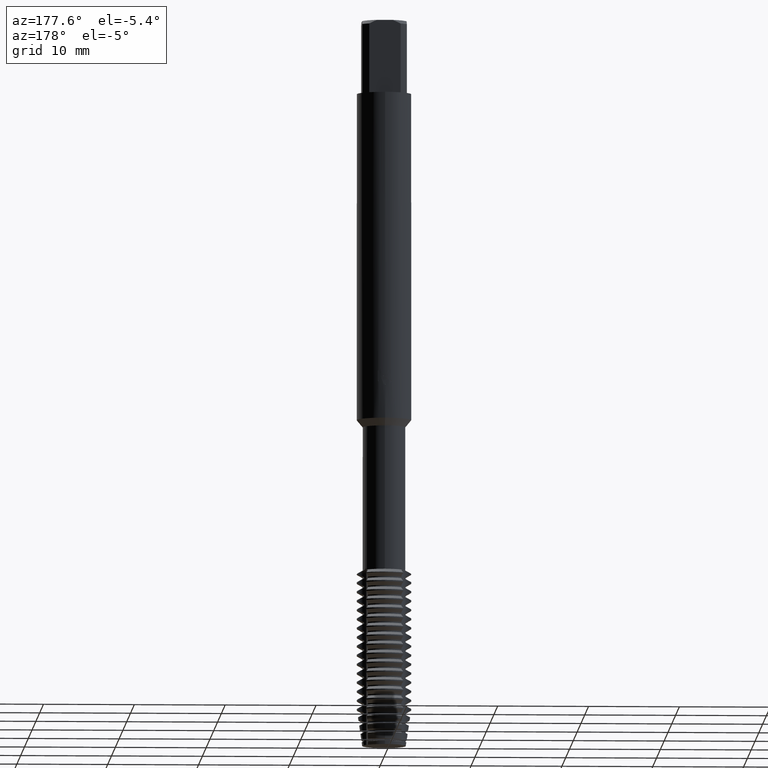
[diagram: clean part render]
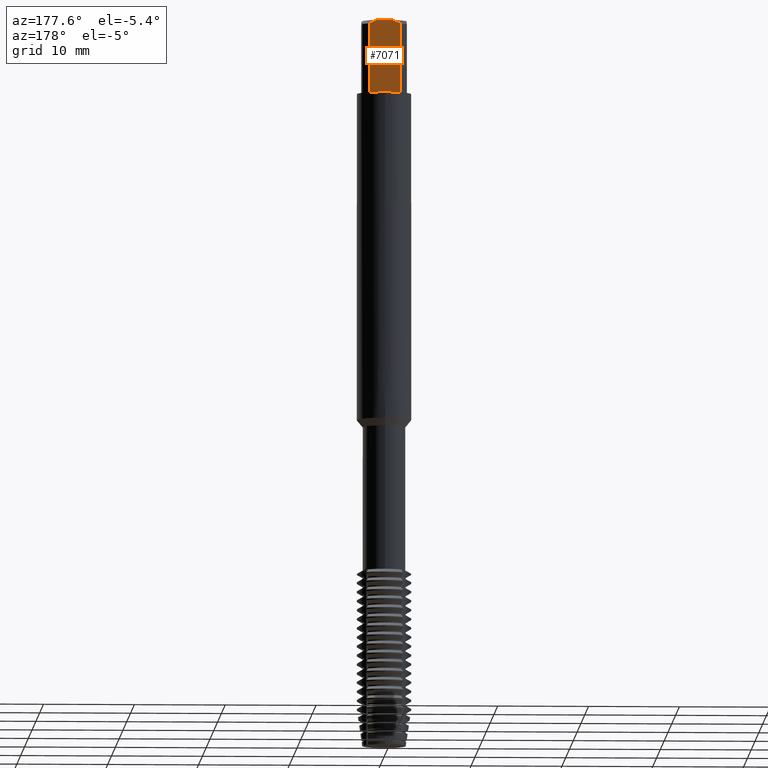
[diagram: same view with one face highlighted and labeled with its STEP entity id]
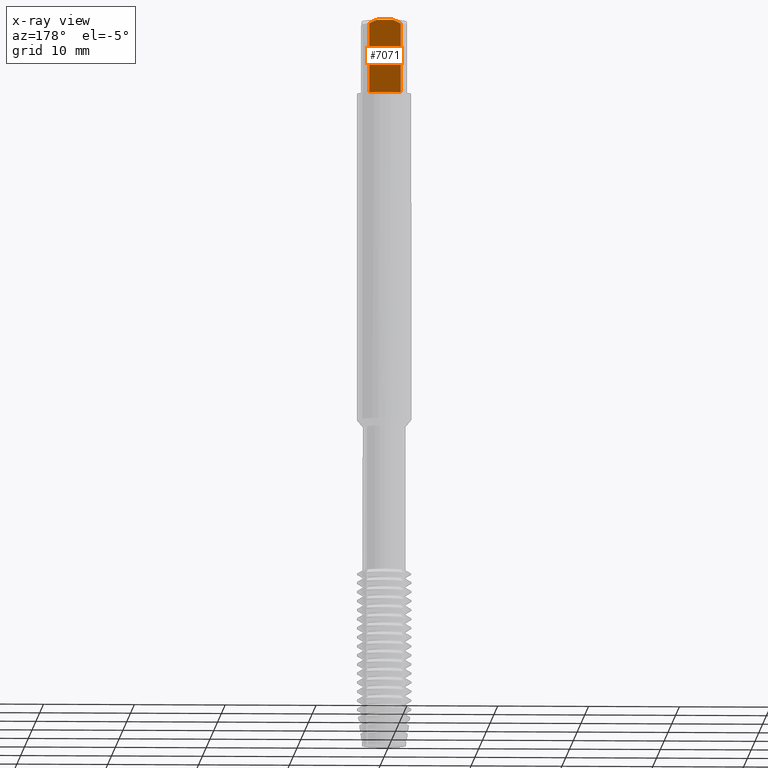
[diagram: x-ray of the same camera — body ghosted, the highlighted face saturated]
A machine part, auxiliary view. The second image highlights one B-rep face of the part: STEP entity #7071.
The next image is the same camera in x-ray: the body ghosted, the highlighted face saturated — about 0% of this face is hidden behind the body in this view.
In plain terms, the highlighted planar face has unit normal (0, 1, 0).
Its self-contained STEP definition (entity closure, byte-faithful):
#3165=EDGE_CURVE('',#6717,#7095,#8003,.T.);
#3367=VERTEX_POINT('',#8223);
#3701=EDGE_CURVE('',#6453,#3367,#8595,.T.);
#4405=VERTEX_POINT('',#9354);
#4503=EDGE_CURVE('',#3367,#4405,#9460,.T.);
#4709=EDGE_CURVE('',#7095,#6453,#9679,.T.);
#5159=EDGE_CURVE('',#4405,#5381,#10170,.T.);
#5381=VERTEX_POINT('',#10412);
#6453=VERTEX_POINT('',#11588);
#6717=VERTEX_POINT('',#11881);
#7071=ADVANCED_FACE('',(#12261),#12262,.T.);
#7095=VERTEX_POINT('',#12286);
#7117=EDGE_CURVE('',#5381,#6717,#12309,.T.);
#8003=LINE('',#13798,#13799);
#8223=CARTESIAN_POINT('',(-1.73132896931808,2.45,-8.0));
#8595=LINE('',#14846,#14847);
#9354=CARTESIAN_POINT('',(1.73132896931808,2.45,-8.0));
#9460=LINE('',#16446,#16447);
#9679=(B_SPLINE_CURVE(2,(#16830,#16831,#16832),.UNSPECIFIED.,.F.,.F.)B_SPLINE_CURVE_WITH_KNOTS((3,3),(0.0,0.950549192151453),.UNSPECIFIED.)RATIONAL_B_SPLINE_CURVE((1.0,1.01203284912645,1.0))BOUNDED_CURVE()REPRESENTATION_ITEM('')GEOMETRIC_REPRESENTATION_ITEM()CURVE());
#10170=LINE('',#17671,#17672);
#10412=CARTESIAN_POINT('',(1.73132896931808,2.45,-0.399999999999999));
#11588=CARTESIAN_POINT('',(-1.73132896931808,2.45,-0.399999999999999));
#11881=CARTESIAN_POINT('',(0.87034475927646,2.45,0.0));
#12261=FACE_OUTER_BOUND('',#21331,.T.);
#12262=PLANE('',#21332);
#12286=CARTESIAN_POINT('',(-0.87034475927646,2.45,0.0));
#12309=(B_SPLINE_CURVE(2,(#21421,#21422,#21423),.UNSPECIFIED.,.F.,.F.)B_SPLINE_CURVE_WITH_KNOTS((3,3),(0.0,0.950549192151453),.UNSPECIFIED.)RATIONAL_B_SPLINE_CURVE((1.0,1.01203284912645,1.0))BOUNDED_CURVE()REPRESENTATION_ITEM('')GEOMETRIC_REPRESENTATION_ITEM()CURVE());
#13798=CARTESIAN_POINT('',(0.0,2.45,0.0));
#13799=VECTOR('',#22679,1.0);
#14846=CARTESIAN_POINT('',(-1.73132896931808,2.45,-4.2));
#14847=VECTOR('',#23334,1.0);
#16446=CARTESIAN_POINT('',(0.0,2.45,-8.0));
#16447=VECTOR('',#24215,1.0);
#16830=CARTESIAN_POINT('',(-0.870344759276449,2.45,1.11022302462516E-016));
#16831=CARTESIAN_POINT('',(-1.27008742822434,2.45,-0.133813052683839));
#16832=CARTESIAN_POINT('',(-1.73132896931807,2.45,-0.399999999999998));
#17671=CARTESIAN_POINT('',(1.73132896931808,2.45,-4.2));
#17672=VECTOR('',#24951,1.0);
#21331=EDGE_LOOP('',(#27356,#27357,#27358,#27359,#27360,#27361));
#21332=AXIS2_PLACEMENT_3D('',#27362,#27363,#27364);
#21421=CARTESIAN_POINT('',(1.73132896931807,2.45,-0.399999999999998));
#21422=CARTESIAN_POINT('',(1.27008742822434,2.45,-0.133813052683839));
#21423=CARTESIAN_POINT('',(0.870344759276449,2.45,1.11022302462516E-016));
#22679=DIRECTION('',(-1.0,0.0,0.0));
#23334=DIRECTION('',(0.0,0.0,-1.0));
#24215=DIRECTION('',(1.0,0.0,0.0));
#24951=DIRECTION('',(-0.0,-0.0,1.0));
#27356=ORIENTED_EDGE('',*,*,#3701,.F.);
#27357=ORIENTED_EDGE('',*,*,#4709,.F.);
#27358=ORIENTED_EDGE('',*,*,#3165,.F.);
#27359=ORIENTED_EDGE('',*,*,#7117,.F.);
#27360=ORIENTED_EDGE('',*,*,#5159,.F.);
#27361=ORIENTED_EDGE('',*,*,#4503,.F.);
#27362=CARTESIAN_POINT('',(0.0,2.45,-3.5));
#27363=DIRECTION('',(0.0,1.0,0.0));
#27364=DIRECTION('',(0.0,0.0,-1.0));